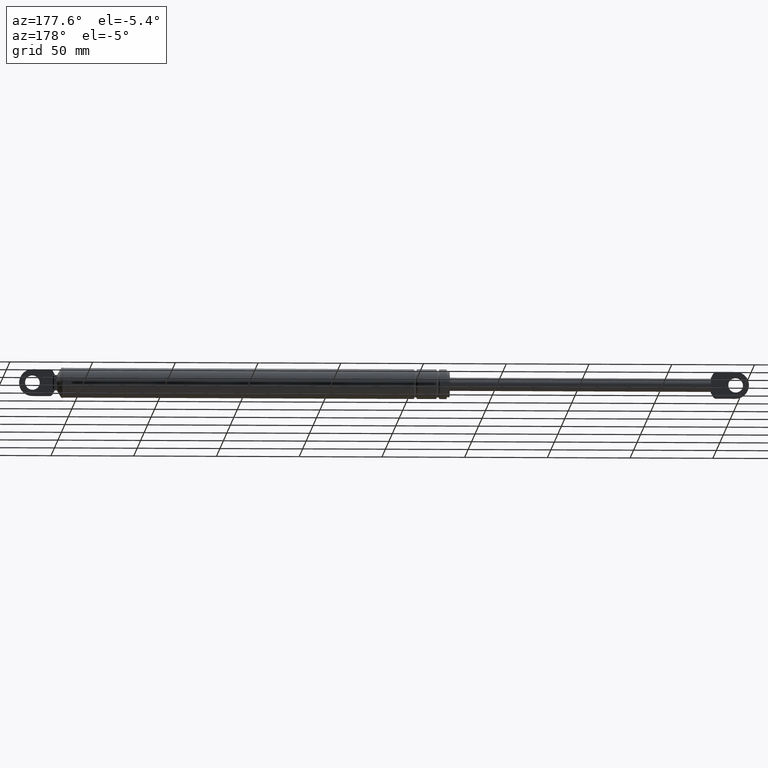
[diagram: clean part render]
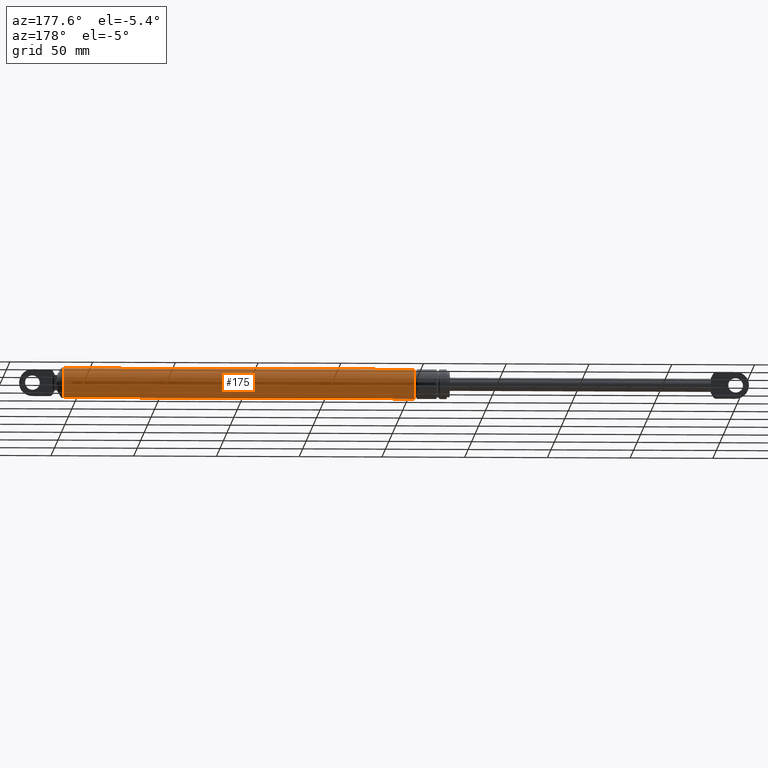
[diagram: same view with one face highlighted and labeled with its STEP entity id]
A machine part, auxiliary view. The second image highlights one B-rep face of the part: STEP entity #175.
In plain terms, the highlighted cylindrical surface (edge-blend (fillet) strip) has radius 9 mm, axis along (1, 0, 0).
Its self-contained STEP definition (entity closure, byte-faithful):
#175=ADVANCED_FACE('',(#839),#838,.T.);
#838=CYLINDRICAL_SURFACE('',#1699,9.00000000000E+000);
#839=FACE_OUTER_BOUND('',#1700,.T.);
#1696=CARTESIAN_POINT('',(0.00000000000E+000,0.00000000000E+000,2.11039985953E+002));
#1697=DIRECTION('',(1.00000000000E+000,-0.00000000000E+000,-0.00000000000E+000));
#1698=DIRECTION('',(-0.00000000000E+000,-0.00000000000E+000,-1.00000000000E+000));
#1699=AXIS2_PLACEMENT_3D('',#1696,#1697,#1698);
#1700=EDGE_LOOP('',(#2160,#2161,#2162,#2163));
#2160=ORIENTED_EDGE('',*,*,#2438,.T.);
#2161=ORIENTED_EDGE('',*,*,#2439,.F.);
#2162=ORIENTED_EDGE('',*,*,#2420,.F.);
#2163=ORIENTED_EDGE('',*,*,#2440,.T.);
#2420=EDGE_CURVE('',#3430,#3431,#3432,.T.);
#2438=EDGE_CURVE('',#3544,#3545,#3546,.T.);
#2439=EDGE_CURVE('',#3431,#3545,#3552,.T.);
#2440=EDGE_CURVE('',#3430,#3544,#3558,.T.);
#3430=VERTEX_POINT('',#4558);
#3431=VERTEX_POINT('',#4559);
#3432=CIRCLE('',#4563,9.00000000000E+000);
#3544=VERTEX_POINT('',#4624);
#3545=VERTEX_POINT('',#4625);
#3546=CIRCLE('',#4629,9.00000000000E+000);
#3552=(BOUNDED_CURVE() B_SPLINE_CURVE(1,(#4630,#4631),.UNSPECIFIED.,.F.,.F.) B_SPLINE_CURVE_WITH_KNOTS((2,2),(4.31313348935E-002,9.56868665227E-001),.UNSPECIFIED.) CURVE() GEOMETRIC_REPRESENTATION_ITEM() RATIONAL_B_SPLINE_CURVE((1.00000000000E+000,1.00000000000E+000)) REPRESENTATION_ITEM('') );
#3558=(BOUNDED_CURVE() B_SPLINE_CURVE(1,(#4632,#4633),.UNSPECIFIED.,.F.,.F.) B_SPLINE_CURVE_WITH_KNOTS((2,2),(4.31313349148E-002,9.56868665085E-001),.UNSPECIFIED.) CURVE() GEOMETRIC_REPRESENTATION_ITEM() RATIONAL_B_SPLINE_CURVE((7.50000000000E-001,7.50000000000E-001)) REPRESENTATION_ITEM('') );
#4558=CARTESIAN_POINT('',(1.93216098664E+002,0.00000000000E+000,2.20039985953E+002));
#4559=CARTESIAN_POINT('',(1.93216098664E+002,5.92118946467E-016,2.02039985953E+002));
#4560=CARTESIAN_POINT('',(1.93216098664E+002,0.00000000000E+000,2.11039985953E+002));
#4561=DIRECTION('',(-1.00000000000E+000,0.00000000000E+000,0.00000000000E+000));
#4562=DIRECTION('',(0.00000000000E+000,-1.22460635382E-016,1.00000000000E+000));
#4563=AXIS2_PLACEMENT_3D('',#4560,#4561,#4562);
#4624=CARTESIAN_POINT('',(4.05066098664E+002,0.00000000000E+000,2.20039985953E+002));
#4625=CARTESIAN_POINT('',(4.05066098664E+002,8.88178419700E-016,2.02039985953E+002));
#4626=CARTESIAN_POINT('',(4.05066098664E+002,0.00000000000E+000,2.11039985953E+002));
#4627=DIRECTION('',(-1.00000000000E+000,0.00000000000E+000,0.00000000000E+000));
#4628=DIRECTION('',(0.00000000000E+000,-1.22460635382E-016,1.00000000000E+000));
#4629=AXIS2_PLACEMENT_3D('',#4626,#4627,#4628);
#4630=CARTESIAN_POINT('',(1.93216098659E+002,0.00000000000E+000,2.02039985953E+002));
#4631=CARTESIAN_POINT('',(4.05066098697E+002,0.00000000000E+000,2.02039985953E+002));
#4632=CARTESIAN_POINT('',(1.93216098664E+002,-2.96059473233E-016,2.20039985953E+002));
#4633=CARTESIAN_POINT('',(4.05066098664E+002,-2.96059473233E-016,2.20039985953E+002));